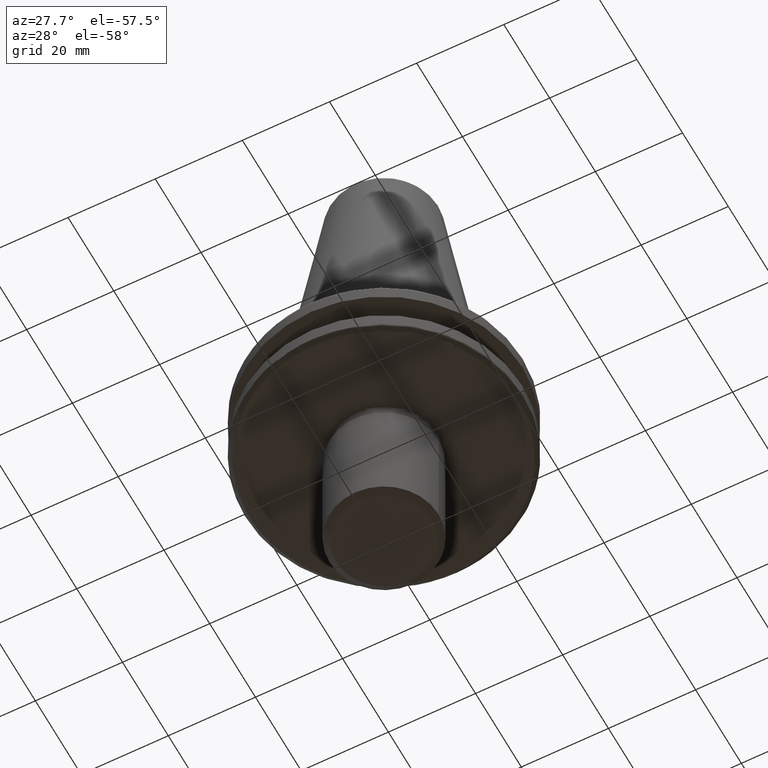
[diagram: clean part render]
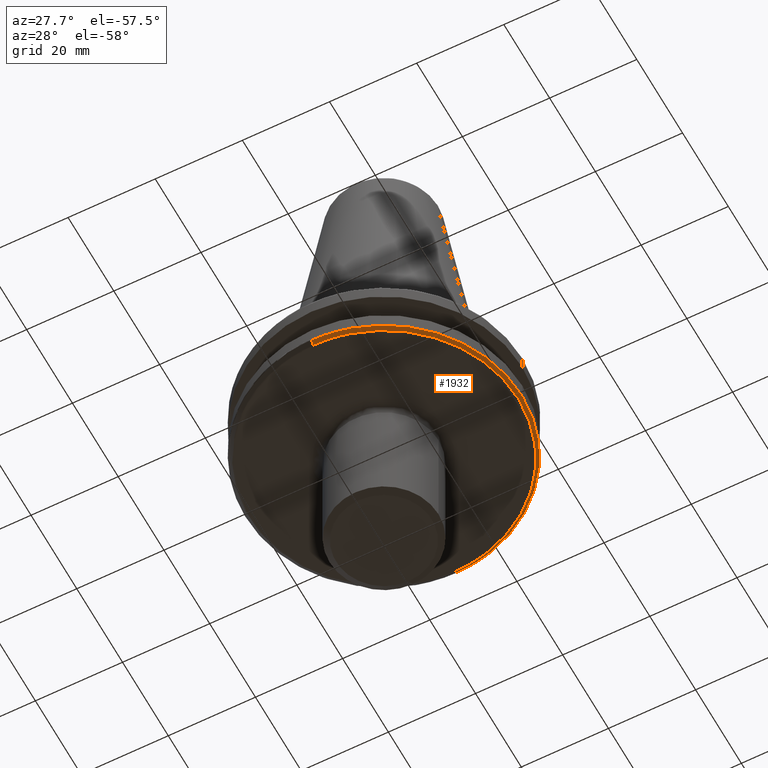
[diagram: same view with one face highlighted and labeled with its STEP entity id]
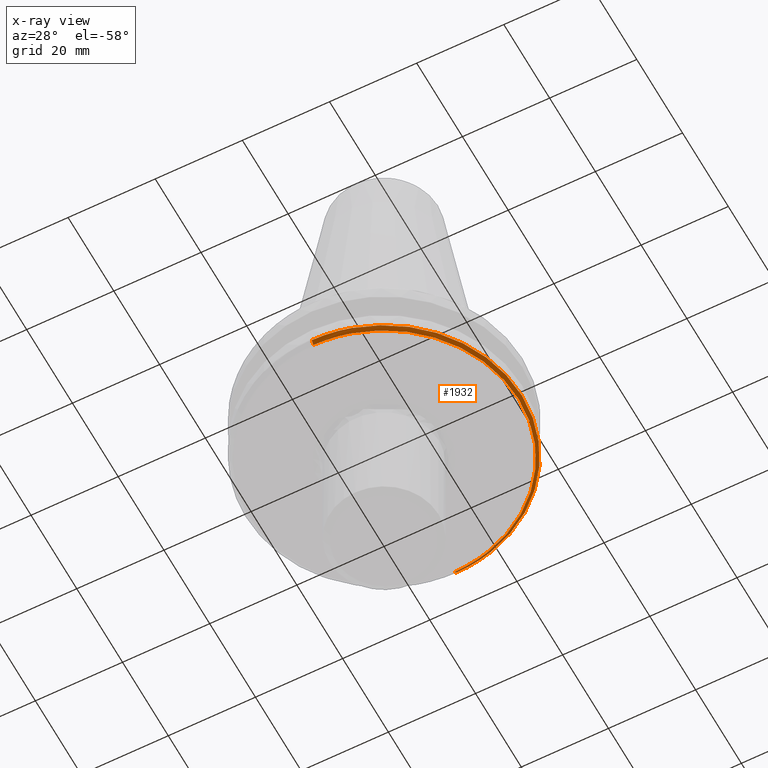
[diagram: x-ray of the same camera — body ghosted, the highlighted face saturated]
A machine part, auxiliary view. The second image highlights one B-rep face of the part: STEP entity #1932.
The next image is the same camera in x-ray: the body ghosted, the highlighted face saturated — about 0% of this face is hidden behind the body in this view.
In plain terms, the highlighted conical surface has half-angle 45 deg.
Its self-contained STEP definition (entity closure, byte-faithful):
#7 = CARTESIAN_POINT ( 'NONE',  ( 3.780136537094584800E-015, 30.86715728752537300, -18.98284271247462100 ) ) ;
#19 = EDGE_CURVE ( 'NONE', #2815, #3065, #2219, .T. ) ;
#23 = ORIENTED_EDGE ( 'NONE', *, *, #2954, .F. ) ;
#50 = CARTESIAN_POINT ( 'NONE',  ( 8.050000000000007800, 29.79897479801664400, -18.98284271247462100 ) ) ;
#70 = CARTESIAN_POINT ( 'NONE',  ( 0.0000000000000000000, -31.63284271247461600, -18.21715728752537400 ) ) ;
#106 = VERTEX_POINT ( 'NONE', #7 ) ;
#159 = CIRCLE ( 'NONE', #2371, 30.86715728752537700 ) ;
#185 = EDGE_LOOP ( 'NONE', ( #1244, #2255, #2028, #2636, #1225, #23, #1466, #916, #2410, #1354 ) ) ;
#225 = CARTESIAN_POINT ( 'NONE',  ( 0.0000000000000000000, 0.0000000000000000000, -18.21715728752537400 ) ) ;
#322 = DIRECTION ( 'NONE',  ( -0.0000000000000000000, -0.0000000000000000000, 1.000000000000000000 ) ) ;
#379 = CARTESIAN_POINT ( 'NONE',  ( 0.0000000000000000000, -31.63284271247461600, -18.21715728752537400 ) ) ;
#398 = DIRECTION ( 'NONE',  ( 0.0000000000000000000, -0.7071067811865426900, 0.7071067811865523500 ) ) ;
#403 = CIRCLE ( 'NONE', #3026, 31.63284271247461600 ) ;
#404 = AXIS2_PLACEMENT_3D ( 'NONE', #440, #444, #436 ) ;
#416 = EDGE_CURVE ( 'NONE', #1967, #1676, #1109, .T. ) ;
#436 = DIRECTION ( 'NONE',  ( 1.000000000000000000, 0.0000000000000000000, 0.0000000000000000000 ) ) ;
#440 = CARTESIAN_POINT ( 'NONE',  ( 0.0000000000000000000, 0.0000000000000000000, -18.21715728752537400 ) ) ;
#444 = DIRECTION ( 'NONE',  ( -0.0000000000000000000, -0.0000000000000000000, 1.000000000000000000 ) ) ;
#445 = CARTESIAN_POINT ( 'NONE',  ( 0.0000000000000000000, 0.0000000000000000000, -18.21715728752537400 ) ) ;
#458 = DIRECTION ( 'NONE',  ( 1.000000000000000000, 0.0000000000000000000, 0.0000000000000000000 ) ) ;
#488 = CIRCLE ( 'NONE', #1102, 31.63284271247461600 ) ;
#585 = CARTESIAN_POINT ( 'NONE',  ( 8.050000000000007800, -29.79897479801664400, -18.98284271247462100 ) ) ;
#679 = EDGE_CURVE ( 'NONE', #2737, #3065, #746, .T. ) ;
#690 = CONICAL_SURFACE ( 'NONE', #3020, 31.63284271247461600, 0.7853981633974415100 ) ;
#696 = AXIS2_PLACEMENT_3D ( 'NONE', #1275, #322, #2868 ) ;
#713 = CARTESIAN_POINT ( 'NONE',  ( 0.0000000000000000000, 0.0000000000000000000, -18.98284271247462100 ) ) ;
#741 = VERTEX_POINT ( 'NONE', #70 ) ;
#746 = CIRCLE ( 'NONE', #2885, 30.86715728752537700 ) ;
#752 = VERTEX_POINT ( 'NONE', #50 ) ;
#768 = DIRECTION ( 'NONE',  ( -0.0000000000000000000, -0.0000000000000000000, -1.000000000000000000 ) ) ;
#771 = CARTESIAN_POINT ( 'NONE',  ( 8.577655408518383600, -30.44766929938765500, -18.21715728752537400 ) ) ;
#780 = VECTOR ( 'NONE', #398, 1000.000000000000000 ) ;
#805 = LINE ( 'NONE', #2764, #1429 ) ;
#916 = ORIENTED_EDGE ( 'NONE', *, *, #679, .T. ) ;
#949 = CARTESIAN_POINT ( 'NONE',  ( 0.0000000000000000000, -30.86715728752538000, -18.98284271247462100 ) ) ;
#962 = DIRECTION ( 'NONE',  ( 0.0000000000000000000, -1.000000000000000000, -1.096786331689821600E-016 ) ) ;
#974 = DIRECTION ( 'NONE',  ( 1.000000000000000000, 0.0000000000000000000, 0.0000000000000000000 ) ) ;
#996 = CARTESIAN_POINT ( 'NONE',  ( 30.86715728752537700, 0.0000000000000000000, -18.98284271247462500 ) ) ;
#1010 = EDGE_CURVE ( 'NONE', #2740, #2245, #403, .T. ) ;
#1102 = AXIS2_PLACEMENT_3D ( 'NONE', #1909, #2837, #2126 ) ;
#1109 = CIRCLE ( 'NONE', #696, 31.63284271247461600 ) ;
#1143 = DIRECTION ( 'NONE',  ( 8.659560562354873700E-017, 0.7071067811865426900, 0.7071067811865523500 ) ) ;
#1201 = EDGE_CURVE ( 'NONE', #1967, #2740, #488, .T. ) ;
#1208 = DIRECTION ( 'NONE',  ( -0.0000000000000000000, -0.0000000000000000000, -1.000000000000000000 ) ) ;
#1225 = ORIENTED_EDGE ( 'NONE', *, *, #1010, .T. ) ;
#1244 = ORIENTED_EDGE ( 'NONE', *, *, #2760, .T. ) ;
#1275 = CARTESIAN_POINT ( 'NONE',  ( 0.0000000000000000000, 0.0000000000000000000, -18.21715728752537400 ) ) ;
#1298 = FACE_OUTER_BOUND ( 'NONE', #185, .T. ) ;
#1346 = DIRECTION ( 'NONE',  ( -0.0000000000000000000, -0.0000000000000000000, 1.000000000000000000 ) ) ;
#1354 = ORIENTED_EDGE ( 'NONE', *, *, #1405, .F. ) ;
#1405 = EDGE_CURVE ( 'NONE', #752, #2815, #159, .T. ) ;
#1429 = VECTOR ( 'NONE', #1143, 1000.000000000000000 ) ;
#1466 = ORIENTED_EDGE ( 'NONE', *, *, #2984, .F. ) ;
#1553 = AXIS2_PLACEMENT_3D ( 'NONE', #1667, #1208, #458 ) ;
#1613 = CARTESIAN_POINT ( 'NONE',  ( 0.0000000000000000000, 0.0000000000000000000, -18.98284271247462100 ) ) ;
#1615 = CIRCLE ( 'NONE', #404, 31.63284271247461600 ) ;
#1667 = CARTESIAN_POINT ( 'NONE',  ( 0.0000000000000000000, 0.0000000000000000000, -18.98284271247462500 ) ) ;
#1676 = VERTEX_POINT ( 'NONE', #2905 ) ;
#1685 = DIRECTION ( 'NONE',  ( -0.0000000000000000000, -0.0000000000000000000, -1.000000000000000000 ) ) ;
#1686 = CARTESIAN_POINT ( 'NONE',  ( 31.63284271247461600, 0.0000000000000000000, -18.21715728752537400 ) ) ;
#1837 = LINE ( 'NONE', #379, #780 ) ;
#1875 = CARTESIAN_POINT ( 'NONE',  ( 8.505395553603396100, 30.46793370986785400, -18.21715728752537400 ) ) ;
#1909 = CARTESIAN_POINT ( 'NONE',  ( 0.0000000000000000000, 0.0000000000000000000, -18.21715728752537400 ) ) ;
#1932 = ADVANCED_FACE ( 'NONE', ( #1298 ), #690, .T. ) ;
#1967 = VERTEX_POINT ( 'NONE', #1875 ) ;
#2028 = ORIENTED_EDGE ( 'NONE', *, *, #416, .F. ) ;
#2101 = DIRECTION ( 'NONE',  ( -0.0000000000000000000, -0.0000000000000000000, 1.000000000000000000 ) ) ;
#2126 = DIRECTION ( 'NONE',  ( 1.000000000000000000, -1.776356839400250500E-015, 1.096786331689821600E-016 ) ) ;
#2219 = CIRCLE ( 'NONE', #1553, 30.86715728752537700 ) ;
#2245 = VERTEX_POINT ( 'NONE', #771 ) ;
#2255 = ORIENTED_EDGE ( 'NONE', *, *, #2749, .T. ) ;
#2371 = AXIS2_PLACEMENT_3D ( 'NONE', #2914, #768, #2517 ) ;
#2410 = ORIENTED_EDGE ( 'NONE', *, *, #19, .F. ) ;
#2517 = DIRECTION ( 'NONE',  ( 1.000000000000000000, -8.881784197001252300E-016, 0.0000000000000000000 ) ) ;
#2566 = DIRECTION ( 'NONE',  ( 1.000000000000000000, 0.0000000000000000000, 0.0000000000000000000 ) ) ;
#2569 = CIRCLE ( 'NONE', #2652, 30.86715728752537700 ) ;
#2636 = ORIENTED_EDGE ( 'NONE', *, *, #1201, .T. ) ;
#2652 = AXIS2_PLACEMENT_3D ( 'NONE', #1613, #1346, #974 ) ;
#2737 = VERTEX_POINT ( 'NONE', #949 ) ;
#2740 = VERTEX_POINT ( 'NONE', #1686 ) ;
#2749 = EDGE_CURVE ( 'NONE', #106, #1676, #805, .T. ) ;
#2760 = EDGE_CURVE ( 'NONE', #752, #106, #2569, .T. ) ;
#2764 = CARTESIAN_POINT ( 'NONE',  ( 3.873905957576371400E-015, 31.63284271247461600, -18.21715728752537100 ) ) ;
#2791 = DIRECTION ( 'NONE',  ( 0.0000000000000000000, -5.483931658449108900E-017, 1.000000000000000000 ) ) ;
#2815 = VERTEX_POINT ( 'NONE', #996 ) ;
#2837 = DIRECTION ( 'NONE',  ( -0.0000000000000000000, -0.0000000000000000000, -1.000000000000000000 ) ) ;
#2868 = DIRECTION ( 'NONE',  ( 1.000000000000000000, 0.0000000000000000000, 0.0000000000000000000 ) ) ;
#2885 = AXIS2_PLACEMENT_3D ( 'NONE', #713, #2101, #2566 ) ;
#2905 = CARTESIAN_POINT ( 'NONE',  ( 3.873905957576370600E-015, 31.63284271247460900, -18.21715728752537400 ) ) ;
#2914 = CARTESIAN_POINT ( 'NONE',  ( 0.0000000000000000000, 0.0000000000000000000, -18.98284271247462500 ) ) ;
#2954 = EDGE_CURVE ( 'NONE', #741, #2245, #1615, .T. ) ;
#2984 = EDGE_CURVE ( 'NONE', #2737, #741, #1837, .T. ) ;
#3020 = AXIS2_PLACEMENT_3D ( 'NONE', #445, #2791, #962 ) ;
#3026 = AXIS2_PLACEMENT_3D ( 'NONE', #225, #1685, #3058 ) ;
#3058 = DIRECTION ( 'NONE',  ( 1.000000000000000000, 0.0000000000000000000, 1.096786331689821600E-016 ) ) ;
#3065 = VERTEX_POINT ( 'NONE', #585 ) ;